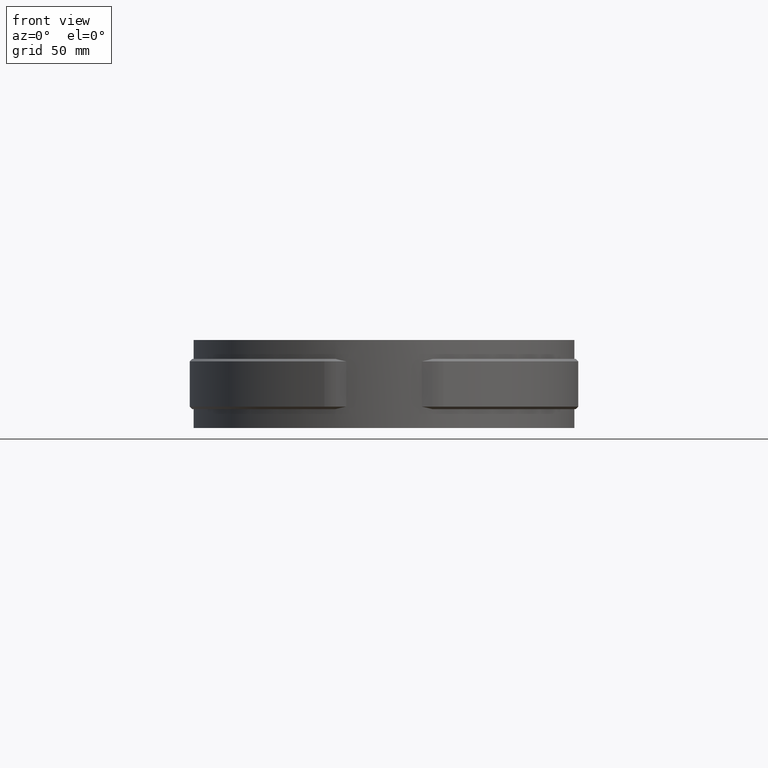
[diagram: clean part render]
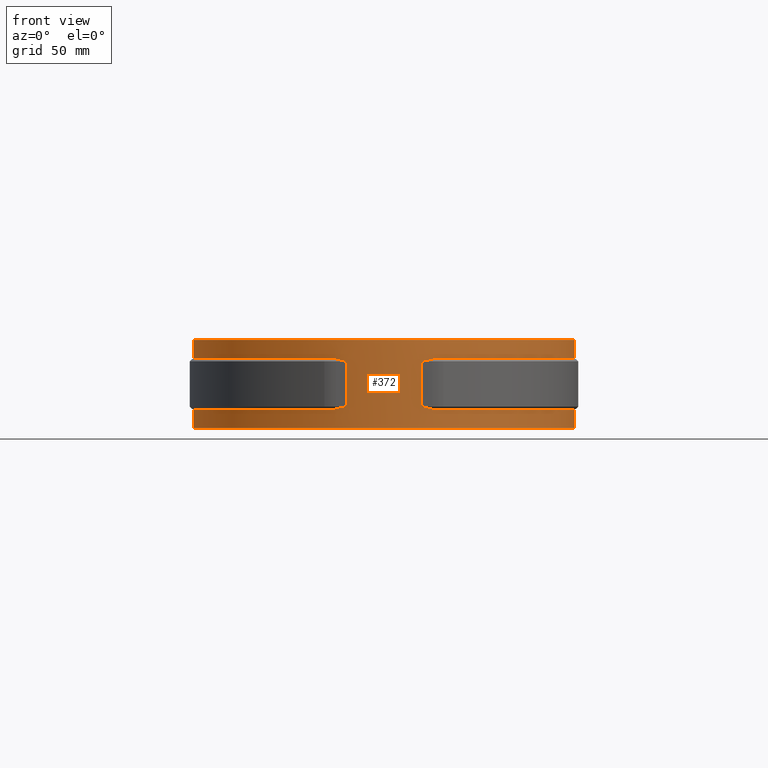
[diagram: same view with one face highlighted and labeled with its STEP entity id]
A machine part, front view. The second image highlights one B-rep face of the part: STEP entity #372.
In plain terms, the highlighted cylindrical surface (partial cylindrical patch) has radius 75.9 mm, axis along (0, 0, 1).
Its self-contained STEP definition (entity closure, byte-faithful):
#372 = ADVANCED_FACE( '', ( #612 ), #613, .T. );
#612 = FACE_OUTER_BOUND( '', #1739, .T. );
#613 = CYLINDRICAL_SURFACE( '', #1740, 75.9000000000000 );
#1739 = EDGE_LOOP( '', ( #4041, #4042, #4043, #4044, #4045, #4046, #4047, #4048, #4049, #4050, #4051, #4052, #4053, #4054, #4055, #4056, #4057, #4058, #4059, #4060 ) );
#1740 = AXIS2_PLACEMENT_3D( '', #4061, #4062, #4063 );
#4041 = ORIENTED_EDGE( '', *, *, #5100, .T. );
#4042 = ORIENTED_EDGE( '', *, *, #5194, .T. );
#4043 = ORIENTED_EDGE( '', *, *, #5195, .T. );
#4044 = ORIENTED_EDGE( '', *, *, #5196, .F. );
#4045 = ORIENTED_EDGE( '', *, *, #5197, .T. );
#4046 = ORIENTED_EDGE( '', *, *, #5198, .T. );
#4047 = ORIENTED_EDGE( '', *, *, #5162, .F. );
#4048 = ORIENTED_EDGE( '', *, *, #5193, .F. );
#4049 = ORIENTED_EDGE( '', *, *, #5199, .F. );
#4050 = ORIENTED_EDGE( '', *, *, #5147, .T. );
#4051 = ORIENTED_EDGE( '', *, *, #5200, .T. );
#4052 = ORIENTED_EDGE( '', *, *, #5157, .T. );
#4053 = ORIENTED_EDGE( '', *, *, #5201, .T. );
#4054 = ORIENTED_EDGE( '', *, *, #5179, .T. );
#4055 = ORIENTED_EDGE( '', *, *, #5202, .T. );
#4056 = ORIENTED_EDGE( '', *, *, #5203, .T. );
#4057 = ORIENTED_EDGE( '', *, *, #5175, .F. );
#4058 = ORIENTED_EDGE( '', *, *, #5150, .T. );
#4059 = ORIENTED_EDGE( '', *, *, #5129, .T. );
#4060 = ORIENTED_EDGE( '', *, *, #5191, .F. );
#4061 = CARTESIAN_POINT( '', ( -3.46944695195361E-015, -1.38777878078145E-014, -33.5000000000000 ) );
#4062 = DIRECTION( '', ( 0.000000000000000, 0.000000000000000, 1.00000000000000 ) );
#4063 = DIRECTION( '', ( -0.110671936758893, -0.993856992939143, 0.000000000000000 ) );
#5100 = EDGE_CURVE( '', #5690, #5688, #5691, .F. );
#5129 = EDGE_CURVE( '', #5744, #5742, #5745, .T. );
#5147 = EDGE_CURVE( '', #5777, #5775, #5778, .F. );
#5150 = EDGE_CURVE( '', #5782, #5744, #5783, .F. );
#5157 = EDGE_CURVE( '', #5794, #5792, #5795, .F. );
#5162 = EDGE_CURVE( '', #5802, #5803, #5804, .F. );
#5175 = EDGE_CURVE( '', #5782, #5822, #5823, .F. );
#5179 = EDGE_CURVE( '', #5829, #5827, #5830, .F. );
#5191 = EDGE_CURVE( '', #5690, #5742, #5847, .F. );
#5193 = EDGE_CURVE( '', #5848, #5802, #5850, .F. );
#5194 = EDGE_CURVE( '', #5688, #5851, #5852, .F. );
#5195 = EDGE_CURVE( '', #5851, #5853, #5854, .F. );
#5196 = EDGE_CURVE( '', #5855, #5853, #5856, .F. );
#5197 = EDGE_CURVE( '', #5855, #5857, #5858, .T. );
#5198 = EDGE_CURVE( '', #5857, #5803, #5859, .F. );
#5199 = EDGE_CURVE( '', #5777, #5848, #5860, .T. );
#5200 = EDGE_CURVE( '', #5775, #5794, #5861, .F. );
#5201 = EDGE_CURVE( '', #5792, #5829, #5862, .T. );
#5202 = EDGE_CURVE( '', #5827, #5863, #5864, .F. );
#5203 = EDGE_CURVE( '', #5863, #5822, #5865, .F. );
#5688 = VERTEX_POINT( '', #7903 );
#5690 = VERTEX_POINT( '', #7905 );
#5691 = CIRCLE( '', #7906, 75.9000000000000 );
#5742 = VERTEX_POINT( '', #8394 );
#5744 = VERTEX_POINT( '', #8397 );
#5745 = CIRCLE( '', #8398, 75.9000000000000 );
#5775 = VERTEX_POINT( '', #8440 );
#5777 = VERTEX_POINT( '', #8443 );
#5778 = LINE( '', #8444, #8445 );
#5782 = VERTEX_POINT( '', #8451 );
#5783 = LINE( '', #8452, #8453 );
#5792 = VERTEX_POINT( '', #8467 );
#5794 = VERTEX_POINT( '', #8470 );
#5795 = B_SPLINE_CURVE_WITH_KNOTS( '', 3, ( #8471, #8472, #8473, #8474, #8475 ), .UNSPECIFIED., .F., .F., ( 4, 1, 4 ), ( 0.0454399869634684, 0.0455510886955149, 0.0456621904275614 ), .UNSPECIFIED. );
#5802 = VERTEX_POINT( '', #8486 );
#5803 = VERTEX_POINT( '', #8487 );
#5804 = CIRCLE( '', #8488, 75.9000000000000 );
#5822 = VERTEX_POINT( '', #8515 );
#5823 = CIRCLE( '', #8516, 75.9000000000000 );
#5827 = VERTEX_POINT( '', #8520 );
#5829 = VERTEX_POINT( '', #8523 );
#5830 = LINE( '', #8524, #8525 );
#5847 = LINE( '', #8553, #8554 );
#5848 = VERTEX_POINT( '', #8555 );
#5850 = LINE( '', #8558, #8559 );
#5851 = VERTEX_POINT( '', #8560 );
#5852 = B_SPLINE_CURVE_WITH_KNOTS( '', 3, ( #8561, #8562, #8563, #8564, #8565 ), .UNSPECIFIED., .F., .F., ( 4, 1, 4 ), ( 0.455701035524882, 0.455810429906675, 0.455919824288469 ), .UNSPECIFIED. );
#5853 = VERTEX_POINT( '', #8566 );
#5854 = ELLIPSE( '', #8567, 107.338809384118, 75.9000000000000 );
#5855 = VERTEX_POINT( '', #8568 );
#5856 = LINE( '', #8569, #8570 );
#5857 = VERTEX_POINT( '', #8571 );
#5858 = ELLIPSE( '', #8572, 107.338809384118, 75.9000000000000 );
#5859 = B_SPLINE_CURVE_WITH_KNOTS( '', 3, ( #8573, #8574, #8575, #8576, #8577 ), .UNSPECIFIED., .F., .F., ( 4, 1, 4 ), ( 0.0132547558525077, 0.0133655244424742, 0.0134762930324408 ), .UNSPECIFIED. );
#5860 = CIRCLE( '', #8578, 75.9000000000000 );
#5861 = CIRCLE( '', #8579, 75.9000000000000 );
#5862 = ELLIPSE( '', #8580, 107.338809384118, 75.9000000000000 );
#5863 = VERTEX_POINT( '', #8581 );
#5864 = ELLIPSE( '', #8582, 107.338809384118, 75.9000000000000 );
#5865 = B_SPLINE_CURVE_WITH_KNOTS( '', 3, ( #8583, #8584, #8585, #8586, #8587 ), .UNSPECIFIED., .F., .F., ( 4, 1, 4 ), ( 0.372261272797377, 0.372370381165366, 0.372479489533356 ), .UNSPECIFIED. );
#7903 = CARTESIAN_POINT( '', ( -19.3256757353932, -73.3984213547570, -6.00000000000000 ) );
#7905 = CARTESIAN_POINT( '', ( -8.40000000000000, 75.4337457640810, -6.00000000000000 ) );
#7906 = AXIS2_PLACEMENT_3D( '', #9515, #9516, #9517 );
#8394 = CARTESIAN_POINT( '', ( -8.40000000000000, 75.4337457640810, 1.50000000000000 ) );
#8397 = CARTESIAN_POINT( '', ( 8.39999999999999, 75.4337457640810, 1.50000000000000 ) );
#8398 = AXIS2_PLACEMENT_3D( '', #9533, #9534, #9535 );
#8440 = CARTESIAN_POINT( '', ( 8.39999999999999, 75.4337457640810, -26.0000000000000 ) );
#8443 = CARTESIAN_POINT( '', ( 8.39999999999999, 75.4337457640810, -33.5000000000000 ) );
#8444 = CARTESIAN_POINT( '', ( 8.39999999999999, 75.4337457640810, -33.5000000000000 ) );
#8445 = VECTOR( '', #9564, 1000.00000000000 );
#8451 = CARTESIAN_POINT( '', ( 8.39999999999999, 75.4337457640809, -6.00000000000000 ) );
#8452 = CARTESIAN_POINT( '', ( 8.39999999999999, 75.4337457640810, -33.5000000000000 ) );
#8453 = VECTOR( '', #9567, 1000.00000000000 );
#8467 = CARTESIAN_POINT( '', ( 19.1154387864890, -73.4534546498665, -25.9465453501335 ) );
#8470 = CARTESIAN_POINT( '', ( 19.3256757353932, -73.3984213547569, -26.0000000000000 ) );
#8471 = CARTESIAN_POINT( '', ( 19.1154387864889, -73.4534546498665, -25.9465453501335 ) );
#8472 = CARTESIAN_POINT( '', ( 19.1504277195343, -73.4443491719687, -25.9556508280313 ) );
#8473 = CARTESIAN_POINT( '', ( 19.2204557201297, -73.4260717833952, -25.9736668820505 ) );
#8474 = CARTESIAN_POINT( '', ( 19.2905852607834, -73.4076606152369, -25.9912887323653 ) );
#8475 = CARTESIAN_POINT( '', ( 19.3256757353932, -73.3984213547569, -26.0000000000000 ) );
#8486 = CARTESIAN_POINT( '', ( -8.40000000000000, 75.4337457640809, -26.0000000000000 ) );
#8487 = CARTESIAN_POINT( '', ( -19.3256757353932, -73.3984213547570, -26.0000000000000 ) );
#8488 = AXIS2_PLACEMENT_3D( '', #9584, #9585, #9586 );
#8515 = CARTESIAN_POINT( '', ( 19.3256757353932, -73.3984213547569, -6.00000000000000 ) );
#8516 = AXIS2_PLACEMENT_3D( '', #9605, #9606, #9607 );
#8520 = CARTESIAN_POINT( '', ( 15.0149925074908, -74.4000000000000, -7.00000000000000 ) );
#8523 = CARTESIAN_POINT( '', ( 15.0149925074908, -74.4000000000000, -25.0000000000000 ) );
#8524 = CARTESIAN_POINT( '', ( 15.0149925074908, -74.4000000000000, -33.5000000000000 ) );
#8525 = VECTOR( '', #9615, 1000.00000000000 );
#8553 = CARTESIAN_POINT( '', ( -8.40000000000000, 75.4337457640810, -33.5000000000000 ) );
#8554 = VECTOR( '', #9630, 1000.00000000000 );
#8555 = CARTESIAN_POINT( '', ( -8.40000000000000, 75.4337457640810, -33.5000000000000 ) );
#8558 = CARTESIAN_POINT( '', ( -8.40000000000000, 75.4337457640810, -33.5000000000000 ) );
#8559 = VECTOR( '', #9632, 1000.00000000000 );
#8560 = CARTESIAN_POINT( '', ( -19.1154387864888, -73.4534546498666, -6.05345464986658 ) );
#8561 = CARTESIAN_POINT( '', ( -19.1154387864888, -73.4534546498666, -6.05345464986658 ) );
#8562 = CARTESIAN_POINT( '', ( -19.1504515202996, -73.4443429780862, -6.04434297808615 ) );
#8563 = CARTESIAN_POINT( '', ( -19.2205035300521, -73.4260592685458, -6.02632096014669 ) );
#8564 = CARTESIAN_POINT( '', ( -19.2906092708887, -73.4076542934182, -6.00870530708689 ) );
#8565 = CARTESIAN_POINT( '', ( -19.3256757353932, -73.3984213547569, -5.99999999999999 ) );
#8566 = CARTESIAN_POINT( '', ( -15.0149925074908, -74.4000000000000, -7.00000000000000 ) );
#8567 = AXIS2_PLACEMENT_3D( '', #9633, #9634, #9635 );
#8568 = CARTESIAN_POINT( '', ( -15.0149925074908, -74.4000000000000, -25.0000000000000 ) );
#8569 = CARTESIAN_POINT( '', ( -15.0149925074908, -74.4000000000000, -33.5000000000000 ) );
#8570 = VECTOR( '', #9636, 1000.00000000000 );
#8571 = CARTESIAN_POINT( '', ( -19.1154387864888, -73.4534546498666, -25.9465453501335 ) );
#8572 = AXIS2_PLACEMENT_3D( '', #9637, #9638, #9639 );
#8573 = CARTESIAN_POINT( '', ( -19.3256757353931, -73.3984213547569, -26.0000000000000 ) );
#8574 = CARTESIAN_POINT( '', ( -19.2905723610385, -73.4076640117171, -25.9912855299825 ) );
#8575 = CARTESIAN_POINT( '', ( -19.2204300603776, -73.4260785001260, -25.9736603567624 ) );
#8576 = CARTESIAN_POINT( '', ( -19.1504149585918, -73.4443524928611, -25.9556475071389 ) );
#8577 = CARTESIAN_POINT( '', ( -19.1154387864888, -73.4534546498666, -25.9465453501334 ) );
#8578 = AXIS2_PLACEMENT_3D( '', #9640, #9641, #9642 );
#8579 = AXIS2_PLACEMENT_3D( '', #9643, #9644, #9645 );
#8580 = AXIS2_PLACEMENT_3D( '', #9646, #9647, #9648 );
#8581 = CARTESIAN_POINT( '', ( 19.1154387864888, -73.4534546498666, -6.05345464986657 ) );
#8582 = AXIS2_PLACEMENT_3D( '', #9649, #9650, #9651 );
#8583 = CARTESIAN_POINT( '', ( 19.3256757353932, -73.3984213547570, -6.00000000000001 ) );
#8584 = CARTESIAN_POINT( '', ( 19.2905683529937, -73.4076650670282, -6.00871546502114 ) );
#8585 = CARTESIAN_POINT( '', ( 19.2204220915048, -73.4260805860632, -6.02634166973986 ) );
#8586 = CARTESIAN_POINT( '', ( 19.1504109974073, -73.4443535237150, -6.04435352371492 ) );
#8587 = CARTESIAN_POINT( '', ( 19.1154387864888, -73.4534546498666, -6.05345464986656 ) );
#9515 = CARTESIAN_POINT( '', ( -3.46944695195361E-015, -1.38777878078145E-014, -6.00000000000000 ) );
#9516 = DIRECTION( '', ( 0.000000000000000, 0.000000000000000, -1.00000000000000 ) );
#9517 = DIRECTION( '', ( -1.00000000000000, 0.000000000000000, 0.000000000000000 ) );
#9533 = CARTESIAN_POINT( '', ( -3.46944695195361E-015, -1.38777878078145E-014, 1.50000000000000 ) );
#9534 = DIRECTION( '', ( 0.000000000000000, 0.000000000000000, -1.00000000000000 ) );
#9535 = DIRECTION( '', ( -1.00000000000000, 0.000000000000000, 0.000000000000000 ) );
#9564 = DIRECTION( '', ( 0.000000000000000, 0.000000000000000, -1.00000000000000 ) );
#9567 = DIRECTION( '', ( 0.000000000000000, 0.000000000000000, -1.00000000000000 ) );
#9584 = CARTESIAN_POINT( '', ( -3.46944695195361E-015, -1.38777878078145E-014, -26.0000000000000 ) );
#9585 = DIRECTION( '', ( 0.000000000000000, 0.000000000000000, -1.00000000000000 ) );
#9586 = DIRECTION( '', ( -1.00000000000000, 0.000000000000000, 0.000000000000000 ) );
#9605 = CARTESIAN_POINT( '', ( -3.46944695195361E-015, -1.38777878078145E-014, -6.00000000000000 ) );
#9606 = DIRECTION( '', ( 0.000000000000000, 0.000000000000000, 1.00000000000000 ) );
#9607 = DIRECTION( '', ( 1.00000000000000, 0.000000000000000, 0.000000000000000 ) );
#9615 = DIRECTION( '', ( 0.000000000000000, 0.000000000000000, -1.00000000000000 ) );
#9630 = DIRECTION( '', ( 0.000000000000000, 0.000000000000000, -1.00000000000000 ) );
#9632 = DIRECTION( '', ( 0.000000000000000, 0.000000000000000, -1.00000000000000 ) );
#9633 = CARTESIAN_POINT( '', ( -3.46944695195361E-015, -1.38777878078145E-014, 67.3999999999999 ) );
#9634 = DIRECTION( '', ( 0.000000000000000, 0.707106781186547, -0.707106781186548 ) );
#9635 = DIRECTION( '', ( 0.000000000000000, -0.707106781186548, -0.707106781186547 ) );
#9636 = DIRECTION( '', ( 0.000000000000000, 0.000000000000000, -1.00000000000000 ) );
#9637 = CARTESIAN_POINT( '', ( -3.46944695195361E-015, -1.38777878078145E-014, -99.4000000000000 ) );
#9638 = DIRECTION( '', ( 0.000000000000000, -0.707106781186548, -0.707106781186548 ) );
#9639 = DIRECTION( '', ( 0.000000000000000, 0.707106781186548, -0.707106781186548 ) );
#9640 = CARTESIAN_POINT( '', ( -3.46944695195361E-015, -1.38777878078145E-014, -33.5000000000000 ) );
#9641 = DIRECTION( '', ( 0.000000000000000, 0.000000000000000, -1.00000000000000 ) );
#9642 = DIRECTION( '', ( -1.00000000000000, 0.000000000000000, 0.000000000000000 ) );
#9643 = CARTESIAN_POINT( '', ( -3.46944695195361E-015, -1.38777878078145E-014, -26.0000000000000 ) );
#9644 = DIRECTION( '', ( 0.000000000000000, 0.000000000000000, 1.00000000000000 ) );
#9645 = DIRECTION( '', ( 1.00000000000000, 0.000000000000000, 0.000000000000000 ) );
#9646 = CARTESIAN_POINT( '', ( -3.46944695195361E-015, -1.38777878078145E-014, -99.3999999999997 ) );
#9647 = DIRECTION( '', ( 3.92523114670943E-017, -0.707106781186546, -0.707106781186549 ) );
#9648 = DIRECTION( '', ( -3.92523114670945E-017, 0.707106781186549, -0.707106781186546 ) );
#9649 = CARTESIAN_POINT( '', ( -3.46944695195361E-015, -1.38777878078145E-014, 67.3999999999999 ) );
#9650 = DIRECTION( '', ( -3.92523114670943E-017, 0.707106781186547, -0.707106781186548 ) );
#9651 = DIRECTION( '', ( 3.92523114670944E-017, -0.707106781186548, -0.707106781186547 ) );